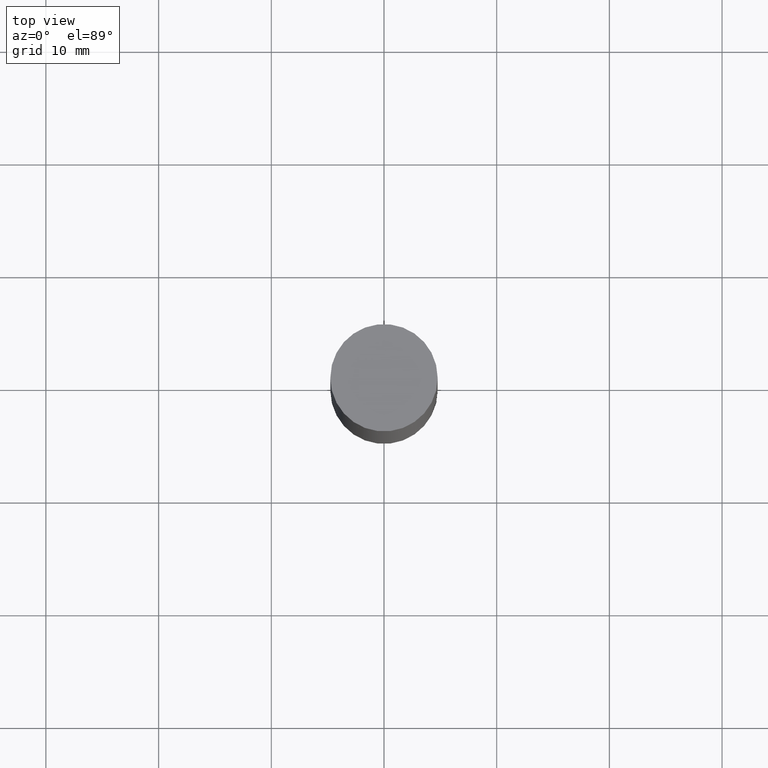
[diagram: clean part render]
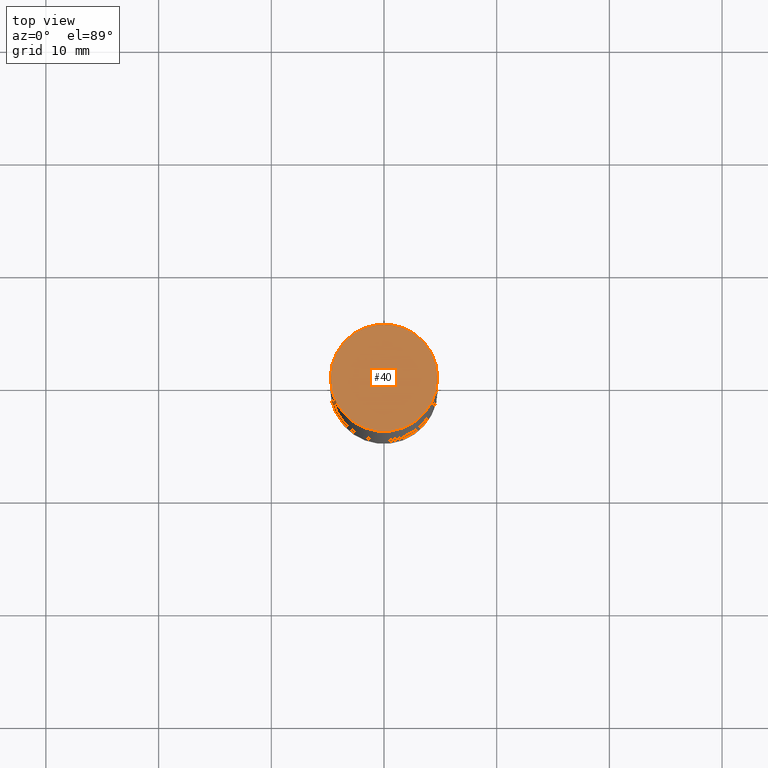
[diagram: same view with one face highlighted and labeled with its STEP entity id]
A machine part, top view. The second image highlights one B-rep face of the part: STEP entity #40.
In plain terms, the highlighted planar face has unit normal (0, 0, 1).
Its self-contained STEP definition (entity closure, byte-faithful):
#16 = VERTEX_POINT ( 'NONE', #186 ) ;
#23 = FACE_OUTER_BOUND ( 'NONE', #480, .T. ) ;
#35 = CARTESIAN_POINT ( 'NONE',  ( 6.113672015462842613E-29, 1.761340885760521790E-18, 5.463695987328526437E-16 ) ) ;
#40 = ADVANCED_FACE ( 'NONE', ( #23 ), #129, .T. ) ;
#44 = AXIS2_PLACEMENT_3D ( 'NONE', #35, #381, #276 ) ;
#102 = DIRECTION ( 'NONE',  ( 1.000000000000000000, -6.982962677686265922E-15, 0.000000000000000000 ) ) ;
#103 = VERTEX_POINT ( 'NONE', #176 ) ;
#129 = PLANE ( 'NONE',  #509 ) ;
#176 = CARTESIAN_POINT ( 'NONE',  ( -0.1875000000000000278, 3.066025098218802702E-16, 5.463695987328561936E-16 ) ) ;
#186 = CARTESIAN_POINT ( 'NONE',  ( 0.1875000000000000278, -1.307544161180414563E-15, 5.463695987328526437E-16 ) ) ;
#229 = AXIS2_PLACEMENT_3D ( 'NONE', #320, #635, #102 ) ;
#240 = DIRECTION ( 'NONE',  ( 2.438088387897959769E-29, 3.492890411551753071E-15, 1.000000000000000000 ) ) ;
#265 = ORIENTED_EDGE ( 'NONE', *, *, #526, .T. ) ;
#276 = DIRECTION ( 'NONE',  ( 1.000000000000000000, -6.982962677686265922E-15, 0.000000000000000000 ) ) ;
#320 = CARTESIAN_POINT ( 'NONE',  ( 6.113672015462842613E-29, 1.761340885760521790E-18, 5.463695987328526437E-16 ) ) ;
#323 = EDGE_CURVE ( 'NONE', #103, #16, #531, .T. ) ;
#329 = CIRCLE ( 'NONE', #44, 0.1875000000000000278 ) ;
#381 = DIRECTION ( 'NONE',  ( 2.445468806185136597E-29, 3.492890411551752677E-15, 1.000000000000000000 ) ) ;
#480 = EDGE_LOOP ( 'NONE', ( #265, #485 ) ) ;
#485 = ORIENTED_EDGE ( 'NONE', *, *, #323, .T. ) ;
#509 = AXIS2_PLACEMENT_3D ( 'NONE', #611, #240, #540 ) ;
#526 = EDGE_CURVE ( 'NONE', #16, #103, #329, .T. ) ;
#531 = CIRCLE ( 'NONE', #229, 0.1875000000000000278 ) ;
#540 = DIRECTION ( 'NONE',  ( -1.000000000000000000, 6.982962677686265922E-15, -9.839502134516470631E-33 ) ) ;
#611 = CARTESIAN_POINT ( 'NONE',  ( 1.309305502066236145E-15, 0.1874999999999999722, 0.000000000000000000 ) ) ;
#635 = DIRECTION ( 'NONE',  ( 2.445468806185136597E-29, 3.492890411551752677E-15, 1.000000000000000000 ) ) ;